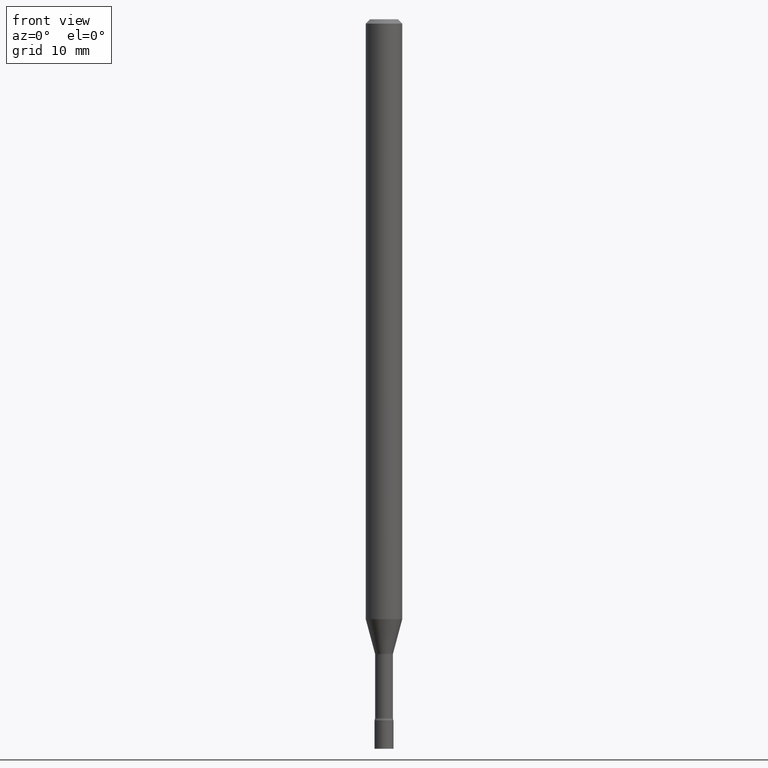
[diagram: clean part render]
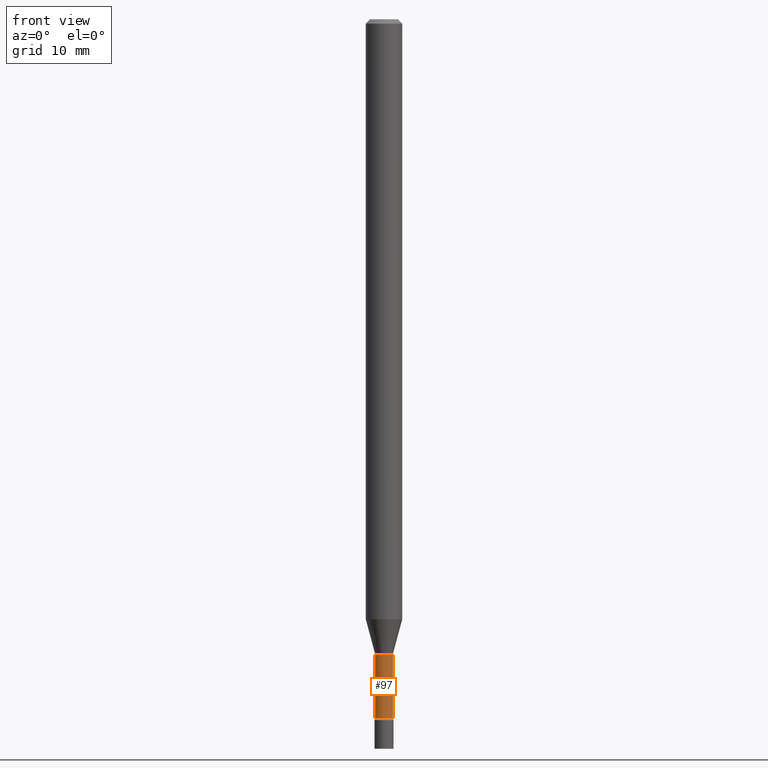
[diagram: same view with one face highlighted and labeled with its STEP entity id]
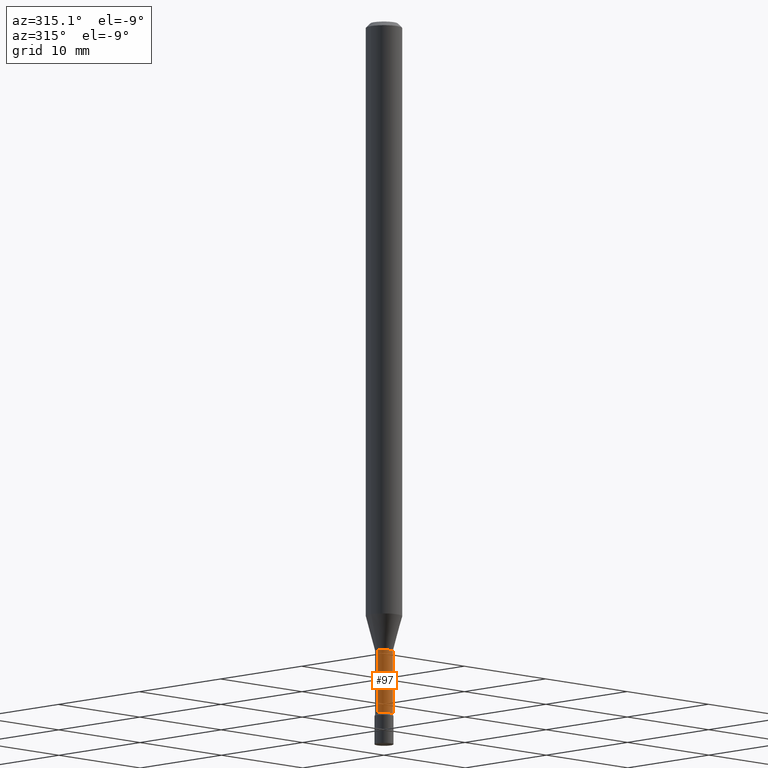
[diagram: same view with one face highlighted and labeled with its STEP entity id]
A machine part, front view. The second image highlights one B-rep face of the part: STEP entity #97.
A second angle (auxiliary view) of the same face is appended — the face is thin or edge-on in the first view.
In plain terms, the highlighted cylindrical surface (edge-blend (fillet) strip) has radius 0.776 mm, axis along (-0, 0, 1).
Its self-contained STEP definition (entity closure, byte-faithful):
#21 = DIRECTION ( 'NONE',  ( 1.000000000000000000, -6.982962677686276177E-15, 0.000000000000000000 ) ) ;
#27 = ORIENTED_EDGE ( 'NONE', *, *, #66, .F. ) ;
#33 = VECTOR ( 'NONE', #485, 39.37007874015748143 ) ;
#58 = DIRECTION ( 'NONE',  ( 1.000000000000000000, -6.982962677686266711E-15, 4.876176775795935793E-29 ) ) ;
#60 = CARTESIAN_POINT ( 'NONE',  ( 0.03055000000000000077, -7.814196355365236006E-15, -2.176974787463811012 ) ) ;
#66 = EDGE_CURVE ( 'NONE', #109, #425, #225, .T. ) ;
#87 = AXIS2_PLACEMENT_3D ( 'NONE', #255, #419, #58 ) ;
#95 = ORIENTED_EDGE ( 'NONE', *, *, #449, .F. ) ;
#97 = ADVANCED_FACE ( 'NONE', ( #98 ), #295, .T. ) ;
#98 = FACE_OUTER_BOUND ( 'NONE', #359, .T. ) ;
#109 = VERTEX_POINT ( 'NONE', #217 ) ;
#113 = EDGE_CURVE ( 'NONE', #109, #153, #518, .T. ) ;
#140 = CARTESIAN_POINT ( 'NONE',  ( 5.323723934594267807E-29, -7.600866845561919593E-15, -2.176974787463811012 ) ) ;
#153 = VERTEX_POINT ( 'NONE', #360 ) ;
#171 = CIRCLE ( 'NONE', #391, 0.03055000000000000077 ) ;
#174 = LINE ( 'NONE', #369, #33 ) ;
#184 = ORIENTED_EDGE ( 'NONE', *, *, #113, .T. ) ;
#217 = CARTESIAN_POINT ( 'NONE',  ( -0.03055000000000008750, -8.149628471819570133E-15, -2.394604224178627838 ) ) ;
#225 = LINE ( 'NONE', #500, #293 ) ;
#245 = AXIS2_PLACEMENT_3D ( 'NONE', #334, #381, #21 ) ;
#255 = CARTESIAN_POINT ( 'NONE',  ( 0.000000000000000000, 0.000000000000000000, 0.000000000000000000 ) ) ;
#293 = VECTOR ( 'NONE', #495, 39.37007874015748143 ) ;
#295 = CYLINDRICAL_SURFACE ( 'NONE', #87, 0.03055000000000004240 ) ;
#333 = CARTESIAN_POINT ( 'NONE',  ( -0.03055000000000000077, -7.763720598323573305E-15, -2.176974787463811012 ) ) ;
#334 = CARTESIAN_POINT ( 'NONE',  ( 5.855929933387994717E-29, -8.360715962634647749E-15, -2.394604224178627838 ) ) ;
#359 = EDGE_LOOP ( 'NONE', ( #27, #184, #444, #95 ) ) ;
#360 = CARTESIAN_POINT ( 'NONE',  ( 0.03055000000000008750, -8.574045472437964163E-15, -2.394604224178627838 ) ) ;
#369 = CARTESIAN_POINT ( 'NONE',  ( 0.03055000000000004240, -2.133295098033157480E-16, 1.489672005005660453E-30 ) ) ;
#371 = EDGE_CURVE ( 'NONE', #153, #466, #174, .T. ) ;
#381 = DIRECTION ( 'NONE',  ( -2.445468806185136597E-29, 3.491481338843145583E-15, 1.000000000000000000 ) ) ;
#391 = AXIS2_PLACEMENT_3D ( 'NONE', #140, #458, #423 ) ;
#419 = DIRECTION ( 'NONE',  ( -2.445468806185136597E-29, 3.491481338843145583E-15, 1.000000000000000000 ) ) ;
#423 = DIRECTION ( 'NONE',  ( 1.000000000000000000, -6.982962677686264344E-15, 0.000000000000000000 ) ) ;
#425 = VERTEX_POINT ( 'NONE', #333 ) ;
#444 = ORIENTED_EDGE ( 'NONE', *, *, #371, .T. ) ;
#449 = EDGE_CURVE ( 'NONE', #425, #466, #171, .T. ) ;
#458 = DIRECTION ( 'NONE',  ( -2.445468806185136597E-29, 3.491481338843145583E-15, 1.000000000000000000 ) ) ;
#466 = VERTEX_POINT ( 'NONE', #60 ) ;
#485 = DIRECTION ( 'NONE',  ( -2.445468806185136877E-29, 3.491481338843145188E-15, 1.000000000000000000 ) ) ;
#495 = DIRECTION ( 'NONE',  ( -2.445468806185136877E-29, 3.491481338843145188E-15, 1.000000000000000000 ) ) ;
#500 = CARTESIAN_POINT ( 'NONE',  ( -0.03055000000000004240, 2.170708057747109080E-16, -1.502734670072875733E-30 ) ) ;
#518 = CIRCLE ( 'NONE', #245, 0.03055000000000008750 ) ;